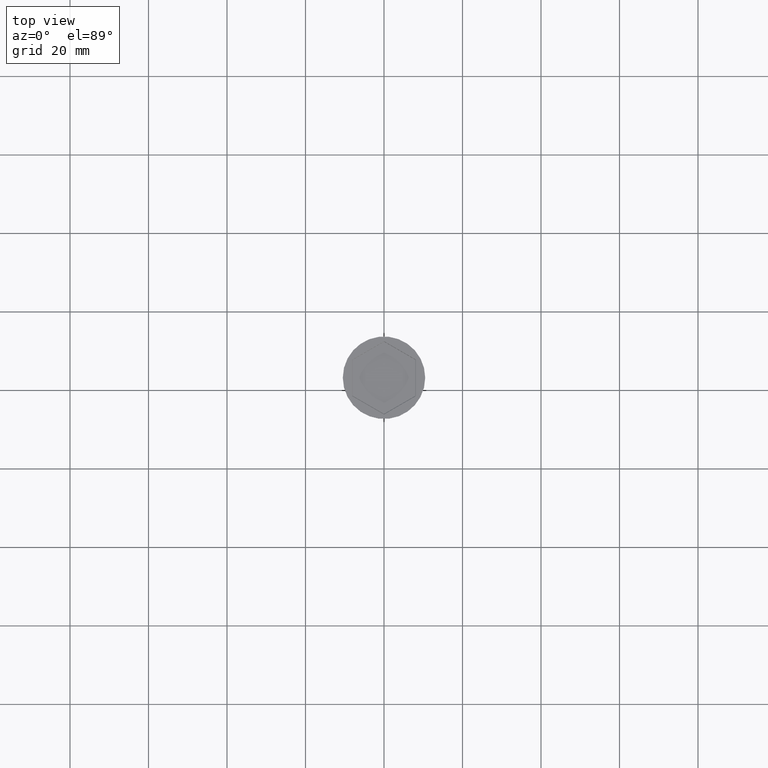
[diagram: clean part render]
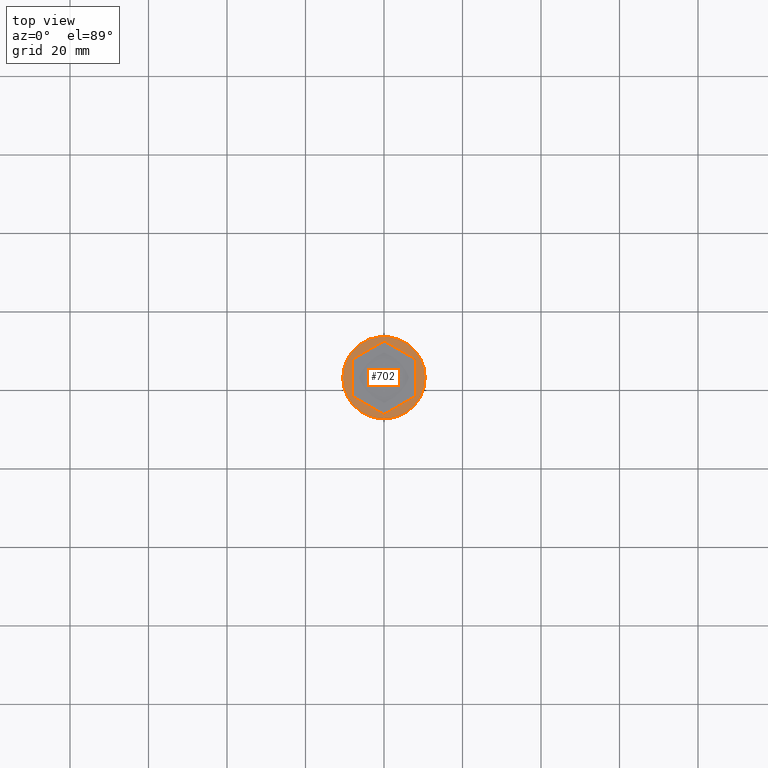
[diagram: same view with one face highlighted and labeled with its STEP entity id]
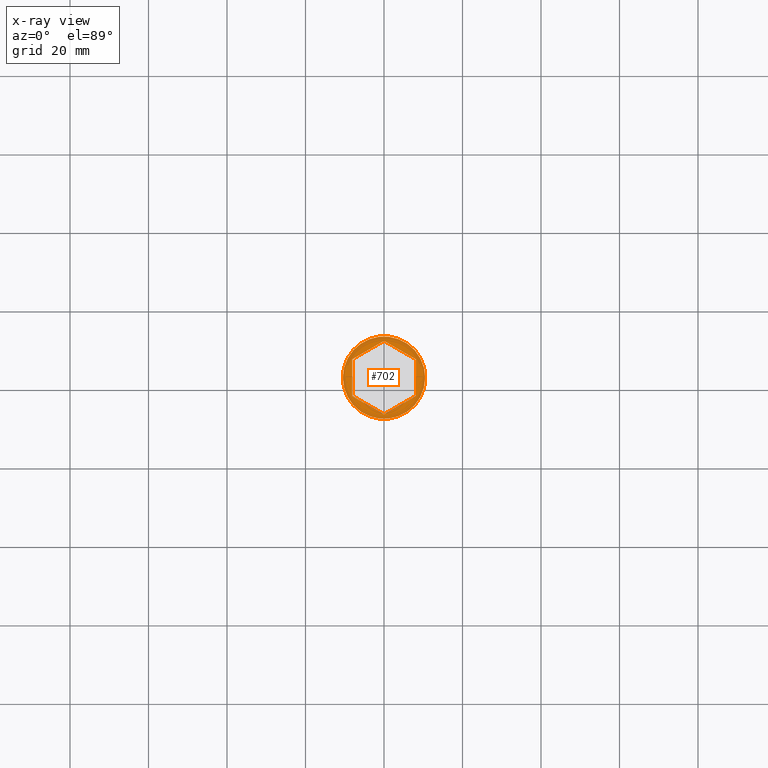
[diagram: x-ray of the same camera — body ghosted, the highlighted face saturated]
A machine part, top view. The second image highlights one B-rep face of the part: STEP entity #702.
The next image is the same camera in x-ray: the body ghosted, the highlighted face saturated — about 0% of this face is hidden behind the body in this view.
In plain terms, the highlighted planar face has unit normal (0, -0, 1).
Its self-contained STEP definition (entity closure, byte-faithful):
#2 = LINE ( 'NONE', #626, #1130 ) ;
#7 = ORIENTED_EDGE ( 'NONE', *, *, #642, .T. ) ;
#71 = CARTESIAN_POINT ( 'NONE',  ( -0.04999999999999182182, 9.324206847412437327, 0.000000000000000000 ) ) ;
#103 = VERTEX_POINT ( 'NONE', #652 ) ;
#122 = VECTOR ( 'NONE', #872, 1000.000000000000000 ) ;
#127 = EDGE_CURVE ( 'NONE', #936, #1149, #611, .T. ) ;
#153 = CARTESIAN_POINT ( 'NONE',  ( 0.000000000000000000, 0.000000000000000000, 0.000000000000000000 ) ) ;
#158 = DIRECTION ( 'NONE',  ( -0.8660254037844387076, 0.4999999999999998890, 0.000000000000000000 ) ) ;
#159 = CARTESIAN_POINT ( 'NONE',  ( 0.04999999999999227979, -9.324206847412442656, 0.000000000000000000 ) ) ;
#177 = PLANE ( 'NONE',  #1030 ) ;
#197 = DIRECTION ( 'NONE',  ( 1.000000000000000000, 0.000000000000000000, 0.000000000000000000 ) ) ;
#216 = EDGE_CURVE ( 'NONE', #1037, #1364, #683, .T. ) ;
#217 = DIRECTION ( 'NONE',  ( 0.8660254037844385966, 0.5000000000000001110, 0.000000000000000000 ) ) ;
#233 = EDGE_CURVE ( 'NONE', #103, #586, #1239, .T. ) ;
#306 = CARTESIAN_POINT ( 'NONE',  ( 10.50000000000000000, 0.000000000000000000, 0.000000000000000000 ) ) ;
#338 = EDGE_CURVE ( 'NONE', #1364, #492, #523, .T. ) ;
#364 = CARTESIAN_POINT ( 'NONE',  ( -8.099999999999983658, 4.618802153517002296, 0.000000000000000000 ) ) ;
#370 = DIRECTION ( 'NONE',  ( 0.000000000000000000, 1.000000000000000000, 0.000000000000000000 ) ) ;
#389 = CARTESIAN_POINT ( 'NONE',  ( 1.575481281892998384E-16, -9.353074360871918458, 0.000000000000000000 ) ) ;
#432 = CARTESIAN_POINT ( 'NONE',  ( -8.049999999999991829, -4.705404693895438584, 0.000000000000000000 ) ) ;
#477 = VECTOR ( 'NONE', #370, 1000.000000000000000 ) ;
#492 = VERTEX_POINT ( 'NONE', #1325 ) ;
#493 = DIRECTION ( 'NONE',  ( 0.8660254037844385966, -0.5000000000000001110, 0.000000000000000000 ) ) ;
#511 = CARTESIAN_POINT ( 'NONE',  ( -1.270549420881450509E-16, 9.353074360871913129, 0.000000000000000000 ) ) ;
#521 = DIRECTION ( 'NONE',  ( 1.000000000000000000, 0.000000000000000000, 0.000000000000000000 ) ) ;
#523 = LINE ( 'NONE', #364, #477 ) ;
#525 = LINE ( 'NONE', #159, #1286 ) ;
#555 = CARTESIAN_POINT ( 'NONE',  ( 0.000000000000000000, 0.000000000000000000, 0.000000000000000000 ) ) ;
#567 = CARTESIAN_POINT ( 'NONE',  ( 0.000000000000000000, 0.000000000000000000, 0.000000000000000000 ) ) ;
#586 = VERTEX_POINT ( 'NONE', #752 ) ;
#603 = EDGE_LOOP ( 'NONE', ( #977, #1297 ) ) ;
#611 = CIRCLE ( 'NONE', #822, 10.50000000000000000 ) ;
#616 = VECTOR ( 'NONE', #217, 1000.000000000000114 ) ;
#619 = VERTEX_POINT ( 'NONE', #511 ) ;
#626 = CARTESIAN_POINT ( 'NONE',  ( 8.049999999999991829, 4.705404693895430590, 0.000000000000000000 ) ) ;
#642 = EDGE_CURVE ( 'NONE', #619, #103, #2, .T. ) ;
#652 = CARTESIAN_POINT ( 'NONE',  ( 8.099999999999983658, 4.676537180435953012, 0.000000000000000000 ) ) ;
#683 = LINE ( 'NONE', #432, #902 ) ;
#702 = ADVANCED_FACE ( 'NONE', ( #1402, #1276 ), #177, .T. ) ;
#752 = CARTESIAN_POINT ( 'NONE',  ( 8.099999999999983658, -4.676537180435961005, 0.000000000000000000 ) ) ;
#822 = AXIS2_PLACEMENT_3D ( 'NONE', #555, #901, #1145 ) ;
#872 = DIRECTION ( 'NONE',  ( 0.000000000000000000, -1.000000000000000000, -0.000000000000000000 ) ) ;
#901 = DIRECTION ( 'NONE',  ( -0.000000000000000000, -0.000000000000000000, 1.000000000000000000 ) ) ;
#902 = VECTOR ( 'NONE', #158, 1000.000000000000000 ) ;
#936 = VERTEX_POINT ( 'NONE', #306 ) ;
#977 = ORIENTED_EDGE ( 'NONE', *, *, #127, .T. ) ;
#1016 = CARTESIAN_POINT ( 'NONE',  ( -8.099999999999983658, -4.676537180435961005, 0.000000000000000000 ) ) ;
#1021 = EDGE_LOOP ( 'NONE', ( #1243, #1132, #7, #1457, #1478, #1283 ) ) ;
#1030 = AXIS2_PLACEMENT_3D ( 'NONE', #153, #1516, #521 ) ;
#1037 = VERTEX_POINT ( 'NONE', #389 ) ;
#1059 = AXIS2_PLACEMENT_3D ( 'NONE', #567, #1543, #197 ) ;
#1130 = VECTOR ( 'NONE', #493, 1000.000000000000114 ) ;
#1132 = ORIENTED_EDGE ( 'NONE', *, *, #1390, .T. ) ;
#1138 = DIRECTION ( 'NONE',  ( -0.8660254037844387076, -0.4999999999999998890, 0.000000000000000000 ) ) ;
#1145 = DIRECTION ( 'NONE',  ( 1.000000000000000000, 0.000000000000000000, 0.000000000000000000 ) ) ;
#1149 = VERTEX_POINT ( 'NONE', #1506 ) ;
#1233 = CIRCLE ( 'NONE', #1059, 10.50000000000000000 ) ;
#1239 = LINE ( 'NONE', #1254, #122 ) ;
#1243 = ORIENTED_EDGE ( 'NONE', *, *, #338, .T. ) ;
#1254 = CARTESIAN_POINT ( 'NONE',  ( 8.099999999999983658, -4.618802153517008513, 0.000000000000000000 ) ) ;
#1276 = FACE_OUTER_BOUND ( 'NONE', #603, .T. ) ;
#1283 = ORIENTED_EDGE ( 'NONE', *, *, #216, .T. ) ;
#1286 = VECTOR ( 'NONE', #1138, 1000.000000000000000 ) ;
#1297 = ORIENTED_EDGE ( 'NONE', *, *, #1603, .T. ) ;
#1325 = CARTESIAN_POINT ( 'NONE',  ( -8.099999999999983658, 4.676537180435953012, 0.000000000000000000 ) ) ;
#1364 = VERTEX_POINT ( 'NONE', #1016 ) ;
#1390 = EDGE_CURVE ( 'NONE', #492, #619, #1560, .T. ) ;
#1402 = FACE_BOUND ( 'NONE', #1021, .T. ) ;
#1457 = ORIENTED_EDGE ( 'NONE', *, *, #233, .T. ) ;
#1478 = ORIENTED_EDGE ( 'NONE', *, *, #1517, .T. ) ;
#1506 = CARTESIAN_POINT ( 'NONE',  ( -10.50000000000000000, 1.285879139104720831E-15, 0.000000000000000000 ) ) ;
#1516 = DIRECTION ( 'NONE',  ( 0.000000000000000000, -0.000000000000000000, 1.000000000000000000 ) ) ;
#1517 = EDGE_CURVE ( 'NONE', #586, #1037, #525, .T. ) ;
#1543 = DIRECTION ( 'NONE',  ( -0.000000000000000000, -0.000000000000000000, 1.000000000000000000 ) ) ;
#1560 = LINE ( 'NONE', #71, #616 ) ;
#1603 = EDGE_CURVE ( 'NONE', #1149, #936, #1233, .T. ) ;